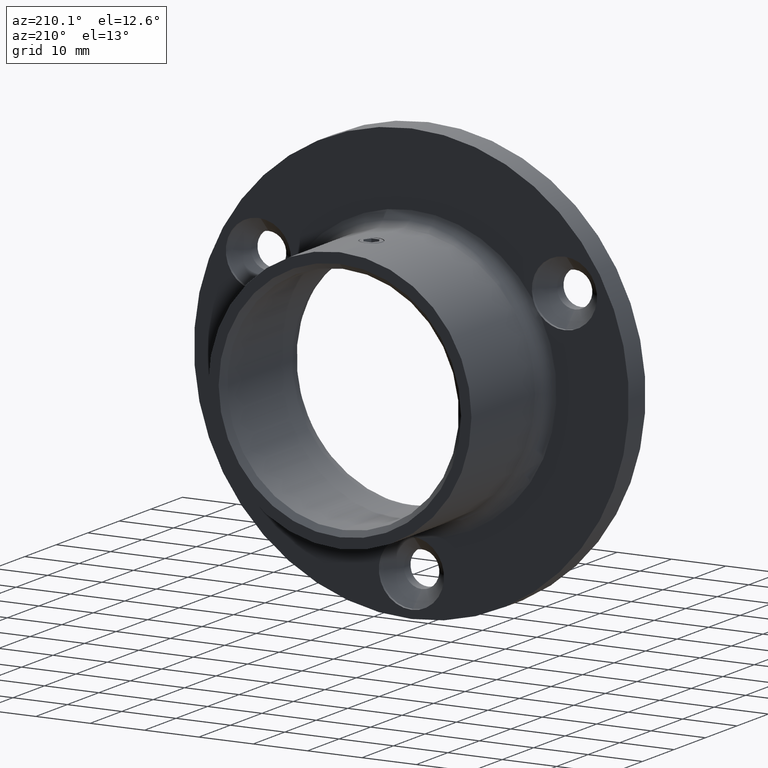
[diagram: clean part render]
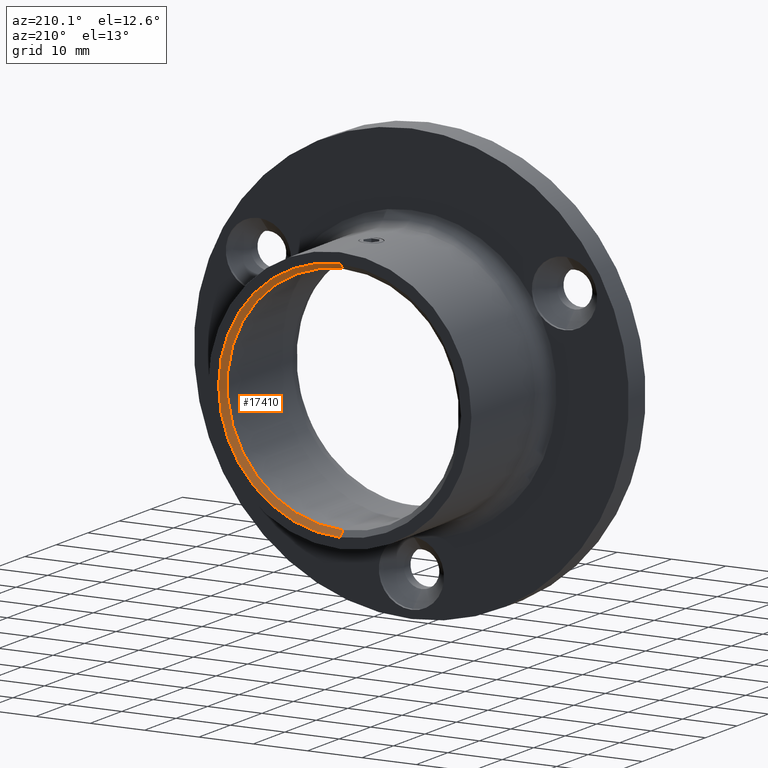
[diagram: same view with one face highlighted and labeled with its STEP entity id]
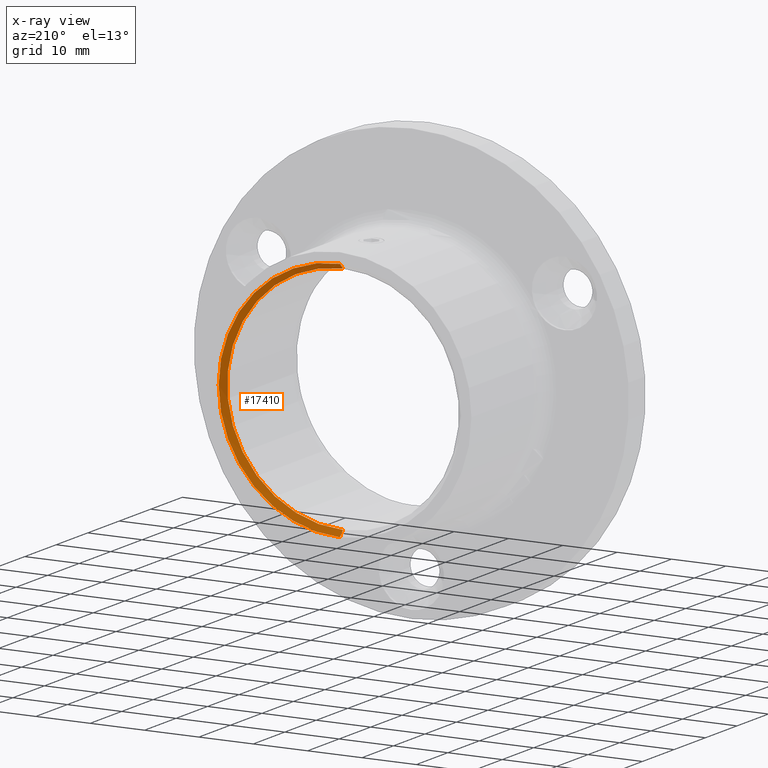
[diagram: x-ray of the same camera — body ghosted, the highlighted face saturated]
A machine part, auxiliary view. The second image highlights one B-rep face of the part: STEP entity #17410.
The next image is the same camera in x-ray: the body ghosted, the highlighted face saturated — about 0% of this face is hidden behind the body in this view.
In plain terms, the highlighted conical surface has half-angle 45 deg.
Its self-contained STEP definition (entity closure, byte-faithful):
#149 = CARTESIAN_POINT ( 'NONE',  ( 0.000000000000000000, 28.00000000000000000, 0.000000000000000000 ) ) ;
#373 = CONICAL_SURFACE ( 'NONE', #11564, 22.30000000000000071, 0.7853981633974466137 ) ;
#649 = DIRECTION ( 'NONE',  ( -0.000000000000000000, -1.000000000000000000, -0.000000000000000000 ) ) ;
#684 = ORIENTED_EDGE ( 'NONE', *, *, #16870, .F. ) ;
#1226 = VERTEX_POINT ( 'NONE', #3761 ) ;
#2253 = ORIENTED_EDGE ( 'NONE', *, *, #18195, .T. ) ;
#2772 = LINE ( 'NONE', #13253, #15400 ) ;
#2776 = VECTOR ( 'NONE', #16762, 1000.000000000000000 ) ;
#3079 = DIRECTION ( 'NONE',  ( 0.000000000000000000, 0.000000000000000000, 1.000000000000000000 ) ) ;
#3761 = CARTESIAN_POINT ( 'NONE',  ( 2.608497682183862521E-15, 26.99999999999999645, 21.30000000000000071 ) ) ;
#3856 = DIRECTION ( 'NONE',  ( 8.659560562354918067E-17, 0.7071067811865487940, -0.7071067811865463515 ) ) ;
#3860 = DIRECTION ( 'NONE',  ( 0.000000000000000000, 0.000000000000000000, -1.000000000000000000 ) ) ;
#4939 = CARTESIAN_POINT ( 'NONE',  ( 0.000000000000000000, 26.99999999999999645, -21.30000000000000071 ) ) ;
#6343 = VERTEX_POINT ( 'NONE', #4939 ) ;
#6994 = LINE ( 'NONE', #18349, #2776 ) ;
#7122 = CARTESIAN_POINT ( 'NONE',  ( 0.000000000000000000, 26.99999999999999645, 0.000000000000000000 ) ) ;
#7525 = CARTESIAN_POINT ( 'NONE',  ( 0.000000000000000000, 28.00000000000000000, 0.000000000000000000 ) ) ;
#8084 = VERTEX_POINT ( 'NONE', #19995 ) ;
#8302 = VERTEX_POINT ( 'NONE', #10095 ) ;
#9781 = CIRCLE ( 'NONE', #10746, 21.30000000000000071 ) ;
#10095 = CARTESIAN_POINT ( 'NONE',  ( 2.730962362098597669E-15, 28.00000000000000000, -22.30000000000000071 ) ) ;
#10746 = AXIS2_PLACEMENT_3D ( 'NONE', #7122, #649, #3860 ) ;
#11564 = AXIS2_PLACEMENT_3D ( 'NONE', #149, #17498, #3079 ) ;
#11736 = ORIENTED_EDGE ( 'NONE', *, *, #12787, .T. ) ;
#12328 = EDGE_LOOP ( 'NONE', ( #684, #11736, #2253, #16406 ) ) ;
#12486 = AXIS2_PLACEMENT_3D ( 'NONE', #7525, #13646, #19988 ) ;
#12787 = EDGE_CURVE ( 'NONE', #6343, #1226, #9781, .T. ) ;
#13253 = CARTESIAN_POINT ( 'NONE',  ( 2.730962362098597669E-15, 28.00000000000000000, -22.30000000000000071 ) ) ;
#13422 = EDGE_CURVE ( 'NONE', #8302, #8084, #18926, .T. ) ;
#13646 = DIRECTION ( 'NONE',  ( -0.000000000000000000, -1.000000000000000000, -0.000000000000000000 ) ) ;
#15400 = VECTOR ( 'NONE', #3856, 1000.000000000000000 ) ;
#16406 = ORIENTED_EDGE ( 'NONE', *, *, #13422, .F. ) ;
#16762 = DIRECTION ( 'NONE',  ( 0.000000000000000000, 0.7071067811865487940, 0.7071067811865463515 ) ) ;
#16870 = EDGE_CURVE ( 'NONE', #6343, #8302, #2772, .T. ) ;
#17410 = ADVANCED_FACE ( 'NONE', ( #17618 ), #373, .F. ) ;
#17498 = DIRECTION ( 'NONE',  ( 0.000000000000000000, 1.000000000000000000, 0.000000000000000000 ) ) ;
#17618 = FACE_OUTER_BOUND ( 'NONE', #12328, .T. ) ;
#18195 = EDGE_CURVE ( 'NONE', #1226, #8084, #6994, .T. ) ;
#18349 = CARTESIAN_POINT ( 'NONE',  ( 0.000000000000000000, 28.00000000000000000, 22.30000000000000071 ) ) ;
#18926 = CIRCLE ( 'NONE', #12486, 22.30000000000000071 ) ;
#19988 = DIRECTION ( 'NONE',  ( 0.000000000000000000, 0.000000000000000000, -1.000000000000000000 ) ) ;
#19995 = CARTESIAN_POINT ( 'NONE',  ( 0.000000000000000000, 28.00000000000000000, 22.30000000000000071 ) ) ;